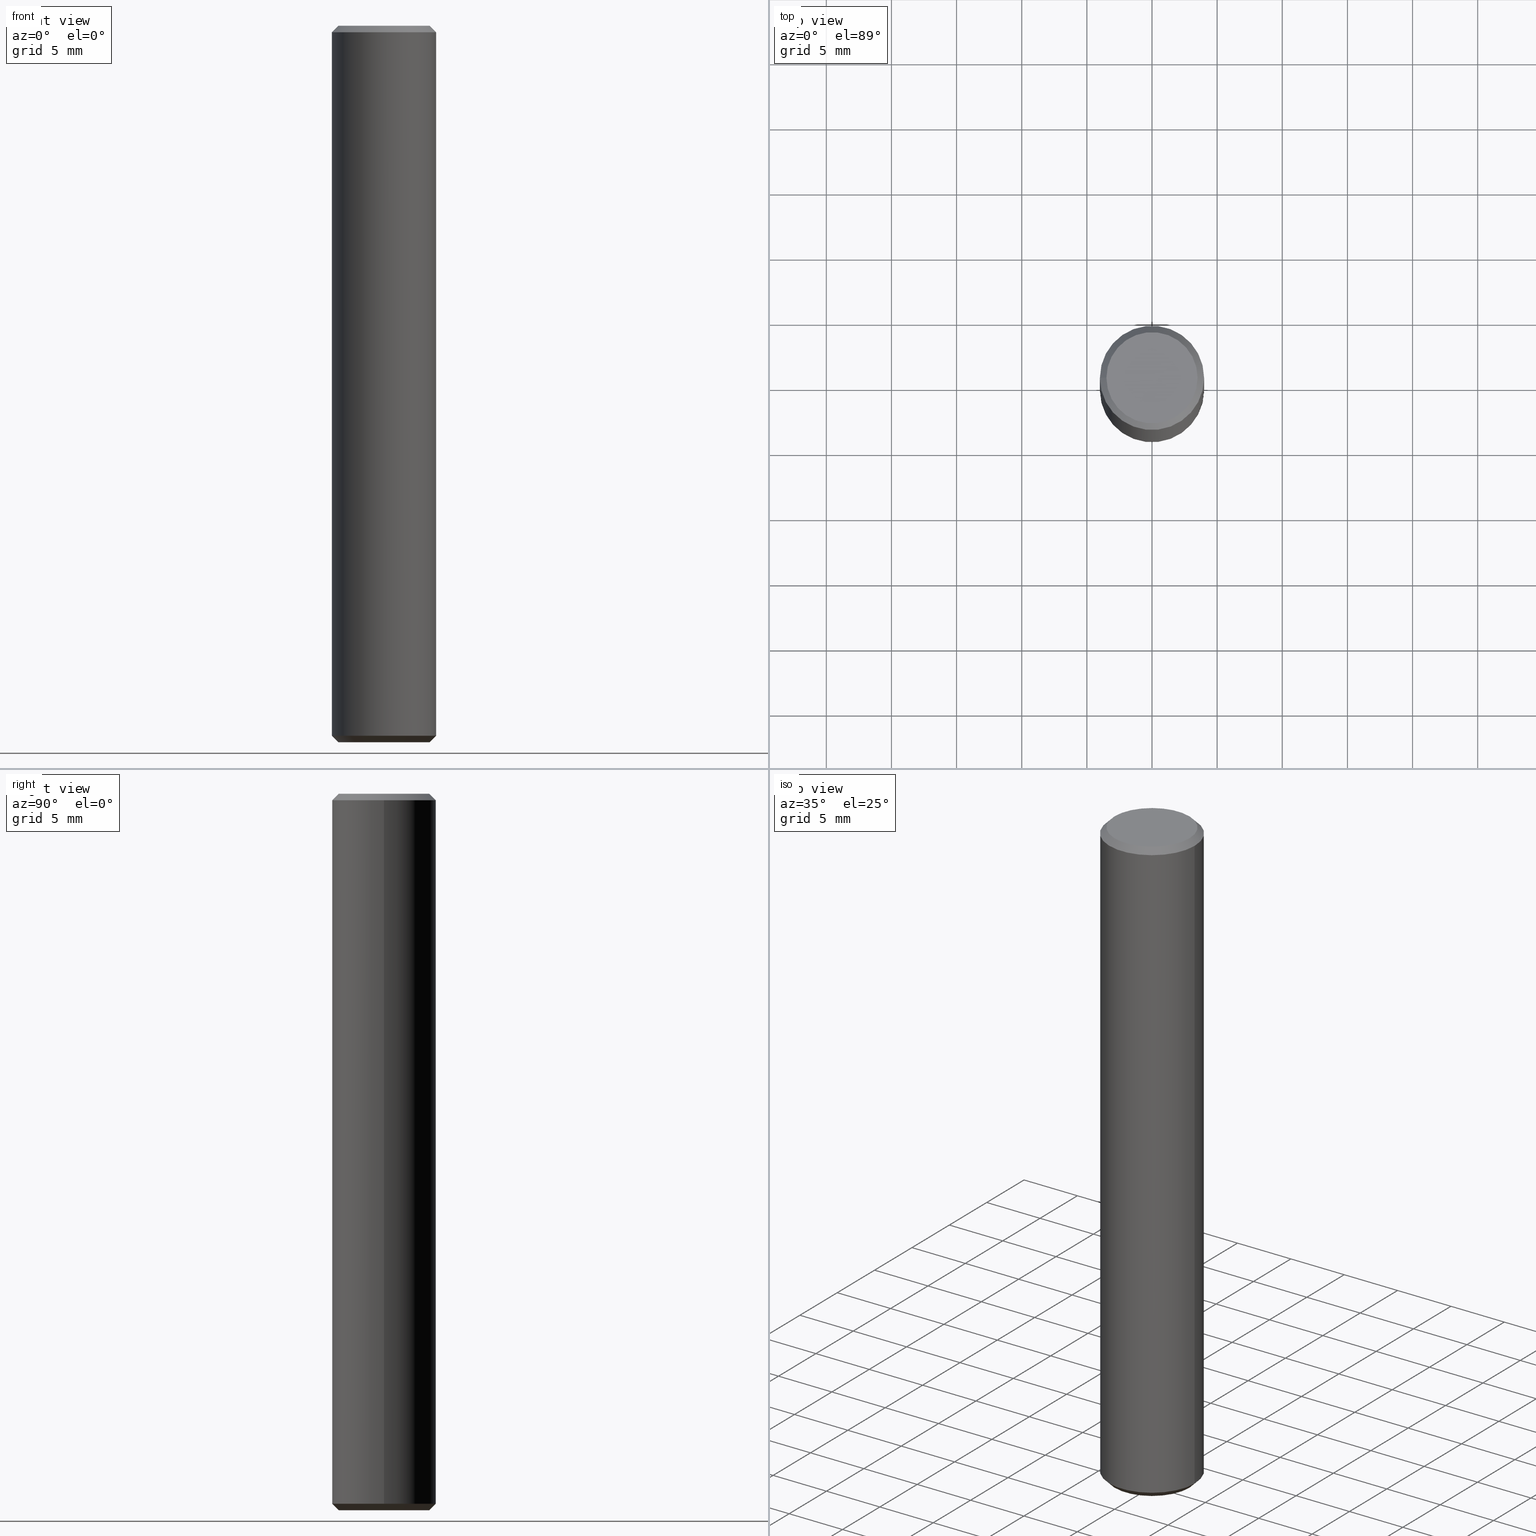
[diagram: canonical four-view strip — front | top / right | iso, engineering-drawing reading convention]
A machine part, canonical four-view strip (front | top / right | iso — engineering-drawing reading convention). The complete STEP part file that produces these views, byte-faithful:
ISO-10303-21;
HEADER;
/* Generated by software containing ST-Developer
 * from STEP Tools, Inc. (www.steptools.com) 
 */

FILE_DESCRIPTION(
/* description */ ('PERNO D8 x 55 PER CERNIERA INF. FE ZN'),
/* implementation_level */ '2;1');

FILE_NAME(
/* name */ 
'Q:\\Catalogo\\2_Accessori Dierre\\Per Download Web e catalogo cartace
o\\CATALOGO ACCESSORI PER RIPARI\\PAGINA 58\\CCRAA0000040.stp',
/* time_stamp */ '2018-11-08T17:47:10+01:00',
/* author */ ('fzagni'),
/* organization */ (''),
/* preprocessor_version */ 'ST-DEVELOPER v16.1',
/* originating_system */ 'Autodesk Inventor 2016',
/* authorisation */ '');

FILE_SCHEMA (('AUTOMOTIVE_DESIGN { 1 0 10303 214 3 1 1 }'));
ENDSEC;

DATA;
#10=MECHANICAL_DESIGN_GEOMETRIC_PRESENTATION_REPRESENTATION('',(#16),#112);
#11=DIMENSIONAL_EXPONENTS(0.,0.,0.,0.,0.,0.,0.);
#12=(
CONVERSION_BASED_UNIT('degree',#13)
NAMED_UNIT(#11)
PLANE_ANGLE_UNIT()
);
#13=PLANE_ANGLE_MEASURE_WITH_UNIT(PLANE_ANGLE_MEASURE(0.01745329252),#115);
#14=SHAPE_REPRESENTATION_RELATIONSHIP('SRR','None',#118,#15);
#15=ADVANCED_BREP_SHAPE_REPRESENTATION('',(#17),#111);
#16=STYLED_ITEM('',(#127),#17);
#17=MANIFOLD_SOLID_BREP('Solido1',#64);
#18=PLANE('',#73);
#19=PLANE('',#74);
#20=CYLINDRICAL_SURFACE('',#72,4.00000000000003);
#21=FACE_BOUND('',#30,.T.);
#22=FACE_BOUND('',#32,.T.);
#23=FACE_BOUND('',#34,.T.);
#24=FACE_OUTER_BOUND('',#29,.T.);
#25=FACE_OUTER_BOUND('',#31,.T.);
#26=FACE_OUTER_BOUND('',#33,.T.);
#27=FACE_OUTER_BOUND('',#35,.T.);
#28=FACE_OUTER_BOUND('',#36,.T.);
#29=EDGE_LOOP('',(#49));
#30=EDGE_LOOP('',(#50));
#31=EDGE_LOOP('',(#51));
#32=EDGE_LOOP('',(#52));
#33=EDGE_LOOP('',(#53));
#34=EDGE_LOOP('',(#54));
#35=EDGE_LOOP('',(#55));
#36=EDGE_LOOP('',(#56));
#37=CIRCLE('',#67,3.50000000000003);
#38=CIRCLE('',#68,4.00000000000003);
#39=CIRCLE('',#70,3.50000000000003);
#40=CIRCLE('',#71,4.00000000000003);
#41=VERTEX_POINT('',#97);
#42=VERTEX_POINT('',#99);
#43=VERTEX_POINT('',#102);
#44=VERTEX_POINT('',#104);
#45=EDGE_CURVE('',#41,#41,#37,.T.);
#46=EDGE_CURVE('',#42,#42,#38,.T.);
#47=EDGE_CURVE('',#43,#43,#39,.T.);
#48=EDGE_CURVE('',#44,#44,#40,.T.);
#49=ORIENTED_EDGE('',*,*,#45,.F.);
#50=ORIENTED_EDGE('',*,*,#46,.F.);
#51=ORIENTED_EDGE('',*,*,#47,.F.);
#52=ORIENTED_EDGE('',*,*,#48,.F.);
#53=ORIENTED_EDGE('',*,*,#48,.T.);
#54=ORIENTED_EDGE('',*,*,#46,.T.);
#55=ORIENTED_EDGE('',*,*,#47,.T.);
#56=ORIENTED_EDGE('',*,*,#45,.T.);
#57=CONICAL_SURFACE('',#66,3.50000000000003,0.785398163397447);
#58=CONICAL_SURFACE('',#69,4.00000000000003,0.785398163397441);
#59=ADVANCED_FACE('',(#24,#21),#57,.T.);
#60=ADVANCED_FACE('',(#25,#22),#58,.T.);
#61=ADVANCED_FACE('',(#26,#23),#20,.T.);
#62=ADVANCED_FACE('',(#27),#18,.F.);
#63=ADVANCED_FACE('',(#28),#19,.T.);
#64=CLOSED_SHELL('',(#59,#60,#61,#62,#63));
#65=AXIS2_PLACEMENT_3D('placement',#95,#75,#76);
#66=AXIS2_PLACEMENT_3D('',#96,#77,#78);
#67=AXIS2_PLACEMENT_3D('',#98,#79,#80);
#68=AXIS2_PLACEMENT_3D('',#100,#81,#82);
#69=AXIS2_PLACEMENT_3D('',#101,#83,#84);
#70=AXIS2_PLACEMENT_3D('',#103,#85,#86);
#71=AXIS2_PLACEMENT_3D('',#105,#87,#88);
#72=AXIS2_PLACEMENT_3D('',#106,#89,#90);
#73=AXIS2_PLACEMENT_3D('',#107,#91,#92);
#74=AXIS2_PLACEMENT_3D('',#108,#93,#94);
#75=DIRECTION('axis',(0.,0.,1.));
#76=DIRECTION('refdir',(1.,0.,0.));
#77=DIRECTION('center_axis',(2.40790686631312E-15,1.49346782869324E-15,
-1.));
#78=DIRECTION('ref_axis',(-1.,-2.18575157973077E-15,-2.40790686631312E-15));
#79=DIRECTION('center_axis',(-2.40790686631312E-15,-1.49346782869324E-15,
1.));
#80=DIRECTION('ref_axis',(1.,2.18575157973074E-15,2.40790686631312E-15));
#81=DIRECTION('center_axis',(2.40790686631312E-15,1.49346782869324E-15,
-1.));
#82=DIRECTION('ref_axis',(1.,3.07392999943088E-15,2.40790686631312E-15));
#83=DIRECTION('center_axis',(-2.40790686631312E-15,-1.49346782869324E-15,
1.));
#84=DIRECTION('ref_axis',(1.,2.18575157973074E-15,2.40790686631312E-15));
#85=DIRECTION('center_axis',(2.40790686631312E-15,1.49346782869324E-15,
-1.));
#86=DIRECTION('ref_axis',(1.,3.07392999943087E-15,2.40790686631312E-15));
#87=DIRECTION('center_axis',(-2.40790686631312E-15,-1.49346782869324E-15,
1.));
#88=DIRECTION('ref_axis',(1.,2.18575157973074E-15,2.40790686631312E-15));
#89=DIRECTION('center_axis',(-2.40790686631312E-15,-1.49346782869324E-15,
1.));
#90=DIRECTION('ref_axis',(1.,2.18575157973074E-15,2.40790686631312E-15));
#91=DIRECTION('center_axis',(2.60016405010531E-15,-1.49346782869323E-15,
1.));
#92=DIRECTION('ref_axis',(1.,2.18575157973078E-15,0.));
#93=DIRECTION('center_axis',(2.60016405010531E-15,-1.49346782869323E-15,
1.));
#94=DIRECTION('ref_axis',(1.,2.18575157973078E-15,-2.60016405010547E-15));
#95=CARTESIAN_POINT('',(0.,0.,0.));
#96=CARTESIAN_POINT('Origin',(-2.22044604925031E-12,8.88178419700125E-13,
-2.66453525910038E-12));
#97=CARTESIAN_POINT('',(-3.50000000000222,8.80355218233308E-13,-2.67296293313247E-12));
#98=CARTESIAN_POINT('Origin',(-2.22044604925031E-12,8.88178419700125E-13,
-2.66453525910038E-12));
#99=CARTESIAN_POINT('',(-4.00000000000094,-2.21836544743691E-12,-0.500000000001953));
#100=CARTESIAN_POINT('Origin',(-9.43689570931383E-13,6.66133814775094E-13,
-0.500000000001943));
#101=CARTESIAN_POINT('Origin',(-1.33226762955019E-12,-3.30291349825984E-12,
-54.4999999999987));
#102=CARTESIAN_POINT('',(3.50000000000005,-2.15728476749E-12,-54.9999999999993));
#103=CARTESIAN_POINT('Origin',(2.77555756156289E-14,-2.16493489801906E-12,
-54.9999999999993));
#104=CARTESIAN_POINT('',(3.9999999999987,-3.29417049194092E-12,-54.4999999999987));
#105=CARTESIAN_POINT('Origin',(-1.33226762955019E-12,-3.30291349825984E-12,
-54.4999999999987));
#106=CARTESIAN_POINT('Origin',(2.77555756156289E-14,-2.16493489801906E-12,
-54.9999999999993));
#107=CARTESIAN_POINT('Origin',(2.77555756156289E-14,-2.16493489801906E-12,
-54.9999999999993));
#108=CARTESIAN_POINT('Origin',(-2.22044604925031E-12,8.88178419700125E-13,
-2.66453525910038E-12));
#109=UNCERTAINTY_MEASURE_WITH_UNIT(LENGTH_MEASURE(0.01),#113,
'DISTANCE_ACCURACY_VALUE',
'Maximum model space distance between geometric entities at asserted c
onnectivities');
#110=UNCERTAINTY_MEASURE_WITH_UNIT(LENGTH_MEASURE(1.E-6),#113,
'DISTANCE_ACCURACY_VALUE',
'Maximum model space distance between geometric entities at asserted c
onnectivities');
#111=(
GEOMETRIC_REPRESENTATION_CONTEXT(3)
GLOBAL_UNCERTAINTY_ASSIGNED_CONTEXT((#109))
GLOBAL_UNIT_ASSIGNED_CONTEXT((#113,#115,#114))
REPRESENTATION_CONTEXT('','3D')
);
#112=(
GEOMETRIC_REPRESENTATION_CONTEXT(3)
GLOBAL_UNCERTAINTY_ASSIGNED_CONTEXT((#110))
GLOBAL_UNIT_ASSIGNED_CONTEXT((#113,#12,#114))
REPRESENTATION_CONTEXT('','3D')
);
#113=(
LENGTH_UNIT()
NAMED_UNIT(*)
SI_UNIT(.MILLI.,.METRE.)
);
#114=(
NAMED_UNIT(*)
SI_UNIT($,.STERADIAN.)
SOLID_ANGLE_UNIT()
);
#115=(
NAMED_UNIT(*)
PLANE_ANGLE_UNIT()
SI_UNIT($,.RADIAN.)
);
#116=SHAPE_DEFINITION_REPRESENTATION(#117,#118);
#117=PRODUCT_DEFINITION_SHAPE('',$,#120);
#118=SHAPE_REPRESENTATION('',(#65),#111);
#119=PRODUCT_DEFINITION_CONTEXT('part definition',#124,'design');
#120=PRODUCT_DEFINITION('CCRAA0000040','CCRAA0000040',#121,#119);
#121=PRODUCT_DEFINITION_FORMATION('','B',#126);
#122=PRODUCT_RELATED_PRODUCT_CATEGORY('CCRAA0000040','CCRAA0000040',(#126));
#123=APPLICATION_PROTOCOL_DEFINITION('international standard',
'automotive_design',2009,#124);
#124=APPLICATION_CONTEXT(
'Core Data for Automotive Mechanical Design Process');
#125=PRODUCT_CONTEXT('part definition',#124,'mechanical');
#126=PRODUCT('CCRAA0000040','CCRAA0000040',$,(#125));
#127=PRESENTATION_STYLE_ASSIGNMENT((#128));
#128=SURFACE_STYLE_USAGE(.BOTH.,#129);
#129=SURFACE_SIDE_STYLE('',(#130));
#130=SURFACE_STYLE_FILL_AREA(#131);
#131=FILL_AREA_STYLE('',(#132));
#132=FILL_AREA_STYLE_COLOUR('',#133);
#133=COLOUR_RGB('',0.83921568627451,0.886274509803922,0.854901960784314);
ENDSEC;
END-ISO-10303-21;
